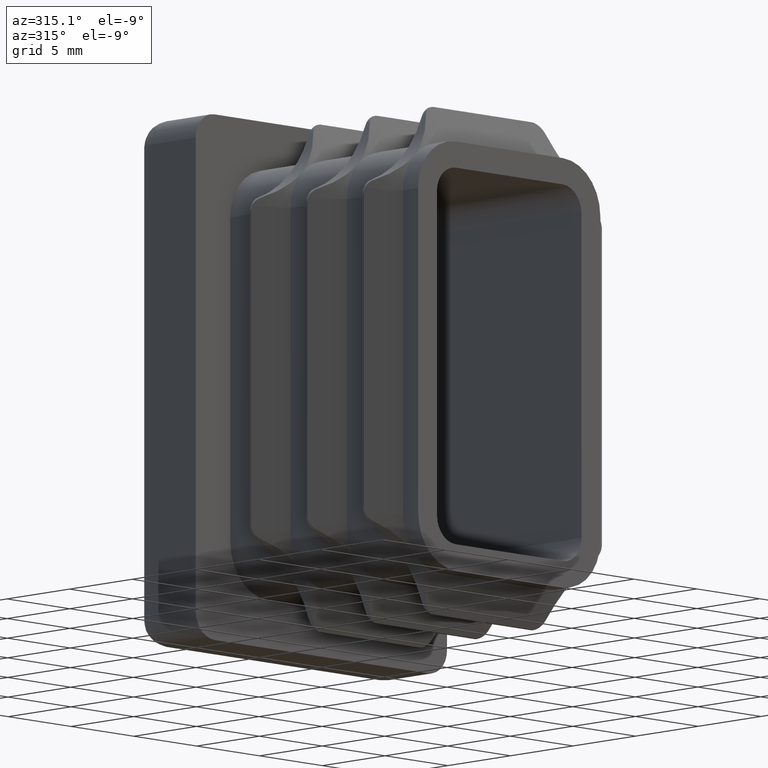
[diagram: clean part render]
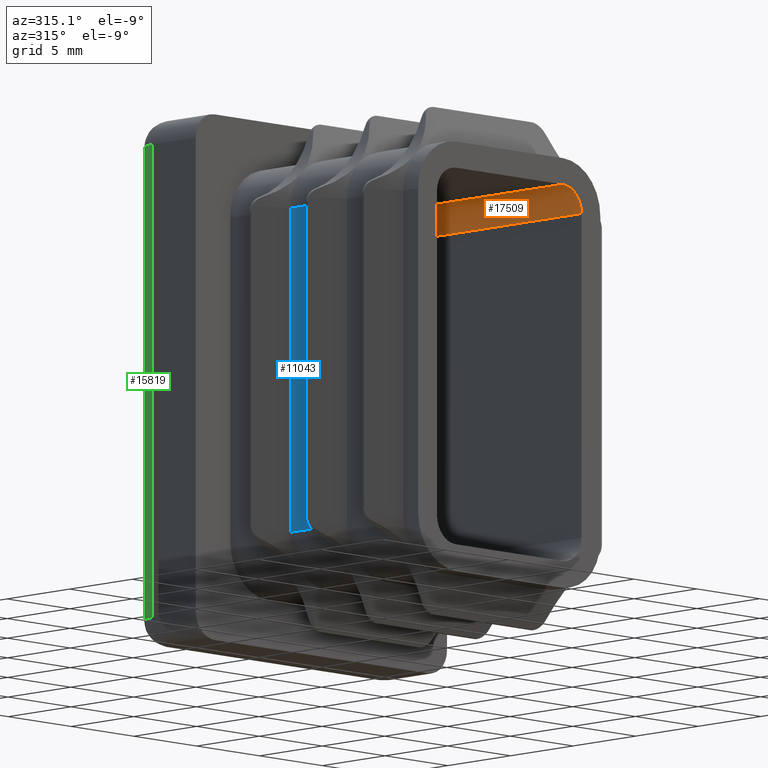
[diagram: same view with three faces highlighted in distinct colors, each labeled with its STEP entity id]
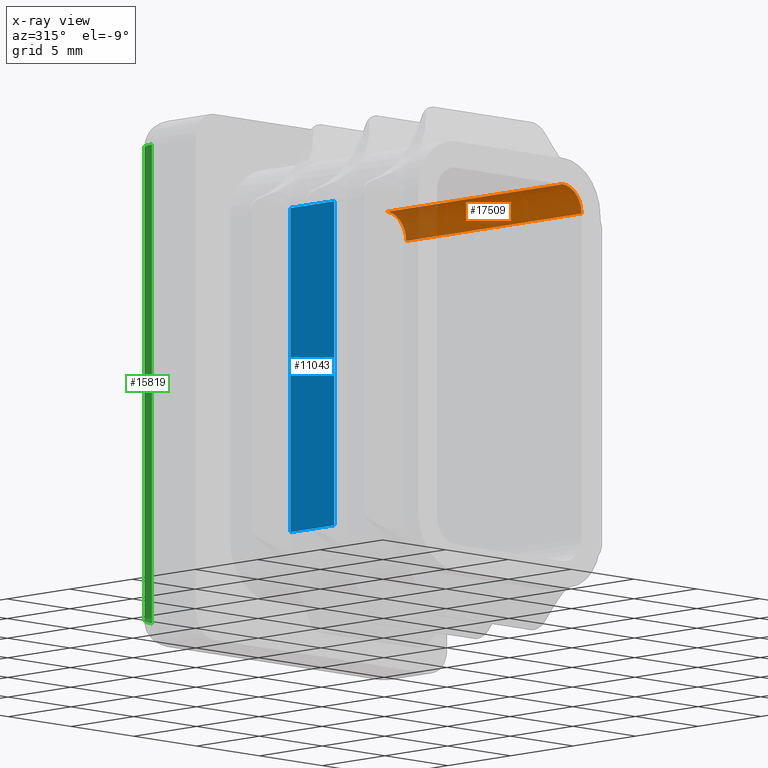
[diagram: x-ray of the same camera — body ghosted, the three highlighted faces saturated]
A machine part, auxiliary view with three faces highlighted in distinct colors.
The next image is the same camera in x-ray (body ghosted, the three faces saturated) — at least one of them is partly hidden behind the body in this view.
Their STEP definitions:

[orange] entity #17509 — the highlighted cylindrical surface (edge-blend (fillet) strip) has radius 1.5 mm, axis along (-0, 1, -0).
#183 = CARTESIAN_POINT ( 'NONE',  ( 5.749999999999998224, -1.000000000000000888, 9.250000000000001776 ) ) ;
#325 = DIRECTION ( 'NONE',  ( -0.000000000000000000, 1.000000000000000000, -0.000000000000000000 ) ) ;
#378 = DIRECTION ( 'NONE',  ( 0.000000000000000000, -1.000000000000000000, 0.000000000000000000 ) ) ;
#935 = CYLINDRICAL_SURFACE ( 'NONE', #6470, 1.500000000000001332 ) ;
#996 = VERTEX_POINT ( 'NONE', #12790 ) ;
#1449 = CARTESIAN_POINT ( 'NONE',  ( 4.249999999999996447, -15.00000000000000000, 10.75000000000000178 ) ) ;
#1803 = CARTESIAN_POINT ( 'NONE',  ( 5.749999999999998224, -15.00000000000000000, 9.250000000000001776 ) ) ;
#1992 = DIRECTION ( 'NONE',  ( 0.000000000000000000, 0.000000000000000000, 1.000000000000000000 ) ) ;
#2201 = CARTESIAN_POINT ( 'NONE',  ( 4.249999999999996447, -15.00000000000000000, 9.250000000000001776 ) ) ;
#2999 = EDGE_CURVE ( 'NONE', #14639, #13947, #8776, .T. ) ;
#4476 = VECTOR ( 'NONE', #10508, 1000.000000000000000 ) ;
#5002 = FACE_OUTER_BOUND ( 'NONE', #9237, .T. ) ;
#5098 = EDGE_CURVE ( 'NONE', #14561, #996, #8539, .T. ) ;
#5400 = CARTESIAN_POINT ( 'NONE',  ( 5.749999999999998224, -15.00000000000000000, 9.250000000000001776 ) ) ;
#6470 = AXIS2_PLACEMENT_3D ( 'NONE', #18746, #9548, #17004 ) ;
#7506 = CARTESIAN_POINT ( 'NONE',  ( 4.249999999999996447, -15.00000000000000000, 10.75000000000000178 ) ) ;
#7821 = CIRCLE ( 'NONE', #11896, 1.500000000000001332 ) ;
#8478 = ORIENTED_EDGE ( 'NONE', *, *, #2999, .F. ) ;
#8539 = LINE ( 'NONE', #1449, #4476 ) ;
#8776 = LINE ( 'NONE', #1803, #18371 ) ;
#9233 = CIRCLE ( 'NONE', #17836, 1.500000000000001332 ) ;
#9237 = EDGE_LOOP ( 'NONE', ( #12284, #16631, #8478, #15042 ) ) ;
#9548 = DIRECTION ( 'NONE',  ( -0.000000000000000000, 1.000000000000000000, -0.000000000000000000 ) ) ;
#10338 = CARTESIAN_POINT ( 'NONE',  ( 4.249999999999996447, -1.000000000000000888, 9.250000000000001776 ) ) ;
#10508 = DIRECTION ( 'NONE',  ( -0.000000000000000000, 1.000000000000000000, -0.000000000000000000 ) ) ;
#10923 = EDGE_CURVE ( 'NONE', #14639, #14561, #7821, .T. ) ;
#11371 = EDGE_CURVE ( 'NONE', #996, #13947, #9233, .T. ) ;
#11896 = AXIS2_PLACEMENT_3D ( 'NONE', #2201, #378, #1992 ) ;
#12284 = ORIENTED_EDGE ( 'NONE', *, *, #5098, .T. ) ;
#12790 = CARTESIAN_POINT ( 'NONE',  ( 4.249999999999996447, -1.000000000000000888, 10.75000000000000178 ) ) ;
#13947 = VERTEX_POINT ( 'NONE', #183 ) ;
#14561 = VERTEX_POINT ( 'NONE', #7506 ) ;
#14639 = VERTEX_POINT ( 'NONE', #5400 ) ;
#15042 = ORIENTED_EDGE ( 'NONE', *, *, #10923, .T. ) ;
#15203 = DIRECTION ( 'NONE',  ( 0.000000000000000000, 0.000000000000000000, 1.000000000000000000 ) ) ;
#16631 = ORIENTED_EDGE ( 'NONE', *, *, #11371, .T. ) ;
#17004 = DIRECTION ( 'NONE',  ( 0.000000000000000000, 0.000000000000000000, 1.000000000000000000 ) ) ;
#17509 = ADVANCED_FACE ( 'NONE', ( #5002 ), #935, .F. ) ;
#17836 = AXIS2_PLACEMENT_3D ( 'NONE', #10338, #19606, #15203 ) ;
#18371 = VECTOR ( 'NONE', #325, 1000.000000000000000 ) ;
#18746 = CARTESIAN_POINT ( 'NONE',  ( 4.249999999999996447, -15.00000000000000000, 9.250000000000001776 ) ) ;
#19606 = DIRECTION ( 'NONE',  ( 0.000000000000000000, 1.000000000000000000, 0.000000000000000000 ) ) ;

[blue] entity #11043 — the highlighted planar face has unit normal (1, 0, 0).
#96 = VERTEX_POINT ( 'NONE', #13825 ) ;
#449 = CARTESIAN_POINT ( 'NONE',  ( -7.250000000000006217, -4.799999999999998046, 9.250000000000001776 ) ) ;
#736 = DIRECTION ( 'NONE',  ( 1.000000000000000000, 0.000000000000000000, 3.750753461571474945E-16 ) ) ;
#824 = CARTESIAN_POINT ( 'NONE',  ( -7.250000000000006217, -15.00000000000000000, 9.250000000000001776 ) ) ;
#1150 = DIRECTION ( 'NONE',  ( -3.750753461571474452E-16, 0.000000000000000000, 1.000000000000000000 ) ) ;
#1298 = VECTOR ( 'NONE', #6965, 1000.000000000000000 ) ;
#1335 = VERTEX_POINT ( 'NONE', #9054 ) ;
#3451 = LINE ( 'NONE', #824, #1298 ) ;
#5342 = CARTESIAN_POINT ( 'NONE',  ( -7.250000000000006217, -15.00000000000000000, 9.250000000000001776 ) ) ;
#5551 = ORIENTED_EDGE ( 'NONE', *, *, #7791, .T. ) ;
#6431 = ORIENTED_EDGE ( 'NONE', *, *, #7998, .F. ) ;
#6815 = CARTESIAN_POINT ( 'NONE',  ( -7.250000000000049738, -8.300000000000000711, -9.250000000000001776 ) ) ;
#6965 = DIRECTION ( 'NONE',  ( -0.000000000000000000, 1.000000000000000000, -0.000000000000000000 ) ) ;
#7021 = LINE ( 'NONE', #18129, #10831 ) ;
#7147 = LINE ( 'NONE', #16409, #14341 ) ;
#7273 = DIRECTION ( 'NONE',  ( -0.000000000000000000, 1.000000000000000000, -0.000000000000000000 ) ) ;
#7791 = EDGE_CURVE ( 'NONE', #1335, #8624, #3451, .T. ) ;
#7998 = EDGE_CURVE ( 'NONE', #96, #8440, #7021, .T. ) ;
#8391 = ORIENTED_EDGE ( 'NONE', *, *, #15555, .T. ) ;
#8406 = PLANE ( 'NONE',  #10231 ) ;
#8440 = VERTEX_POINT ( 'NONE', #16569 ) ;
#8624 = VERTEX_POINT ( 'NONE', #449 ) ;
#9054 = CARTESIAN_POINT ( 'NONE',  ( -7.250000000000006217, -8.300000000000000711, 9.250000000000001776 ) ) ;
#10002 = ORIENTED_EDGE ( 'NONE', *, *, #15360, .F. ) ;
#10231 = AXIS2_PLACEMENT_3D ( 'NONE', #5342, #736, #11400 ) ;
#10831 = VECTOR ( 'NONE', #7273, 1000.000000000000000 ) ;
#11043 = ADVANCED_FACE ( 'NONE', ( #11423 ), #8406, .F. ) ;
#11400 = DIRECTION ( 'NONE',  ( 3.750753461571474945E-16, 0.000000000000000000, -1.000000000000000000 ) ) ;
#11423 = FACE_OUTER_BOUND ( 'NONE', #19738, .T. ) ;
#13825 = CARTESIAN_POINT ( 'NONE',  ( -7.249999999999999112, -8.300000000000000711, -9.250000000000001776 ) ) ;
#14341 = VECTOR ( 'NONE', #1150, 1000.000000000000000 ) ;
#15360 = EDGE_CURVE ( 'NONE', #8440, #8624, #7147, .T. ) ;
#15555 = EDGE_CURVE ( 'NONE', #96, #1335, #18571, .T. ) ;
#16409 = CARTESIAN_POINT ( 'NONE',  ( -7.249999999999997335, -4.799999999999999822, -9.250000000000001776 ) ) ;
#16569 = CARTESIAN_POINT ( 'NONE',  ( -7.249999999999999112, -4.799999999999998934, -9.250000000000001776 ) ) ;
#17608 = VECTOR ( 'NONE', #18953, 1000.000000000000000 ) ;
#18129 = CARTESIAN_POINT ( 'NONE',  ( -7.249999999999999112, -15.00000000000000000, -9.250000000000001776 ) ) ;
#18571 = LINE ( 'NONE', #6815, #17608 ) ;
#18953 = DIRECTION ( 'NONE',  ( -3.750753461571474452E-16, 0.000000000000000000, 1.000000000000000000 ) ) ;
#19738 = EDGE_LOOP ( 'NONE', ( #8391, #5551, #10002, #6431 ) ) ;

[green] entity #15819 — the highlighted cylindrical surface (edge-blend (fillet) strip) has radius 1.5 mm, axis along (-0, 0, -1).
#144 = AXIS2_PLACEMENT_3D ( 'NONE', #13487, #8907, #7504 ) ;
#403 = LINE ( 'NONE', #9182, #2337 ) ;
#1837 = CIRCLE ( 'NONE', #144, 1.499999999999999556 ) ;
#1991 = EDGE_CURVE ( 'NONE', #14831, #17345, #5476, .T. ) ;
#2142 = CARTESIAN_POINT ( 'NONE',  ( -8.499999999999998224, 5.000000000000000000, 13.49999999999999112 ) ) ;
#2337 = VECTOR ( 'NONE', #2920, 1000.000000000000000 ) ;
#2367 = AXIS2_PLACEMENT_3D ( 'NONE', #5789, #18247, #13434 ) ;
#2805 = DIRECTION ( 'NONE',  ( -1.156482317317871528E-15, 0.000000000000000000, 1.000000000000000000 ) ) ;
#2920 = DIRECTION ( 'NONE',  ( -1.156482317317871478E-16, -0.000000000000000000, -1.000000000000000000 ) ) ;
#3569 = EDGE_CURVE ( 'NONE', #17345, #7608, #18124, .T. ) ;
#3628 = FACE_OUTER_BOUND ( 'NONE', #6075, .T. ) ;
#3921 = ORIENTED_EDGE ( 'NONE', *, *, #5076, .F. ) ;
#4503 = AXIS2_PLACEMENT_3D ( 'NONE', #11815, #2805, #15001 ) ;
#5076 = EDGE_CURVE ( 'NONE', #7608, #17542, #403, .T. ) ;
#5476 = LINE ( 'NONE', #2142, #9267 ) ;
#5789 = CARTESIAN_POINT ( 'NONE',  ( -8.500000000000000000, 3.500000000000000000, 9.830099697201908183E-16 ) ) ;
#5903 = CARTESIAN_POINT ( 'NONE',  ( -9.999999999999998224, 3.500000000000000000, 13.49999999999999112 ) ) ;
#6075 = EDGE_LOOP ( 'NONE', ( #12656, #3921, #10766, #13422 ) ) ;
#7504 = DIRECTION ( 'NONE',  ( 1.000000000000000000, 0.000000000000000000, 0.000000000000000000 ) ) ;
#7608 = VERTEX_POINT ( 'NONE', #5903 ) ;
#8907 = DIRECTION ( 'NONE',  ( 0.000000000000000000, -0.000000000000000000, 1.000000000000000000 ) ) ;
#9182 = CARTESIAN_POINT ( 'NONE',  ( -10.00000000000000178, 3.500000000000000000, -13.50000000000000711 ) ) ;
#9267 = VECTOR ( 'NONE', #12878, 1000.000000000000000 ) ;
#10743 = CARTESIAN_POINT ( 'NONE',  ( -8.499999999999998224, 5.000000000000000000, 13.49999999999999289 ) ) ;
#10766 = ORIENTED_EDGE ( 'NONE', *, *, #3569, .F. ) ;
#10951 = CARTESIAN_POINT ( 'NONE',  ( -10.00000000000000178, 3.500000000000000000, -13.50000000000000711 ) ) ;
#11486 = CYLINDRICAL_SURFACE ( 'NONE', #2367, 1.499999999999999556 ) ;
#11815 = CARTESIAN_POINT ( 'NONE',  ( -8.499999999999998224, 3.500000000000000000, 13.49999999999999289 ) ) ;
#11906 = EDGE_CURVE ( 'NONE', #14831, #17542, #1837, .T. ) ;
#12656 = ORIENTED_EDGE ( 'NONE', *, *, #11906, .T. ) ;
#12878 = DIRECTION ( 'NONE',  ( 1.156482317317871478E-16, -0.000000000000000000, 1.000000000000000000 ) ) ;
#13422 = ORIENTED_EDGE ( 'NONE', *, *, #1991, .F. ) ;
#13434 = DIRECTION ( 'NONE',  ( -1.000000000000000000, 0.000000000000000000, 1.156482317317871478E-16 ) ) ;
#13487 = CARTESIAN_POINT ( 'NONE',  ( -8.500000000000001776, 3.500000000000000000, -13.50000000000000711 ) ) ;
#14831 = VERTEX_POINT ( 'NONE', #18098 ) ;
#15001 = DIRECTION ( 'NONE',  ( 1.000000000000000000, 0.000000000000000000, 1.156482317317871725E-15 ) ) ;
#15819 = ADVANCED_FACE ( 'NONE', ( #3628 ), #11486, .T. ) ;
#17345 = VERTEX_POINT ( 'NONE', #10743 ) ;
#17542 = VERTEX_POINT ( 'NONE', #10951 ) ;
#18098 = CARTESIAN_POINT ( 'NONE',  ( -8.500000000000001776, 5.000000000000000000, -13.50000000000000711 ) ) ;
#18124 = CIRCLE ( 'NONE', #4503, 1.499999999999999556 ) ;
#18247 = DIRECTION ( 'NONE',  ( -1.156482317317871478E-16, 0.000000000000000000, -1.000000000000000000 ) ) ;